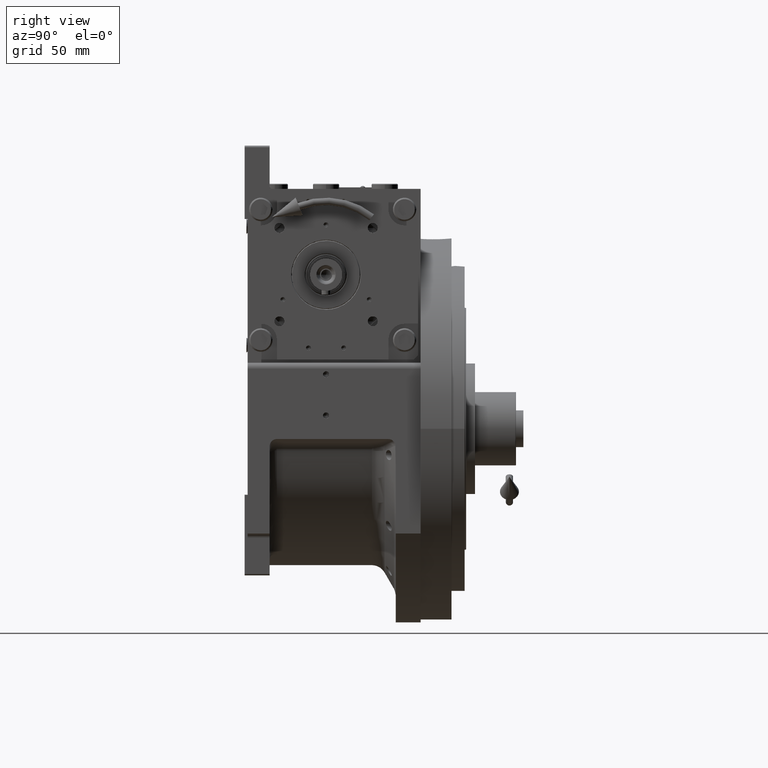
[diagram: clean part render]
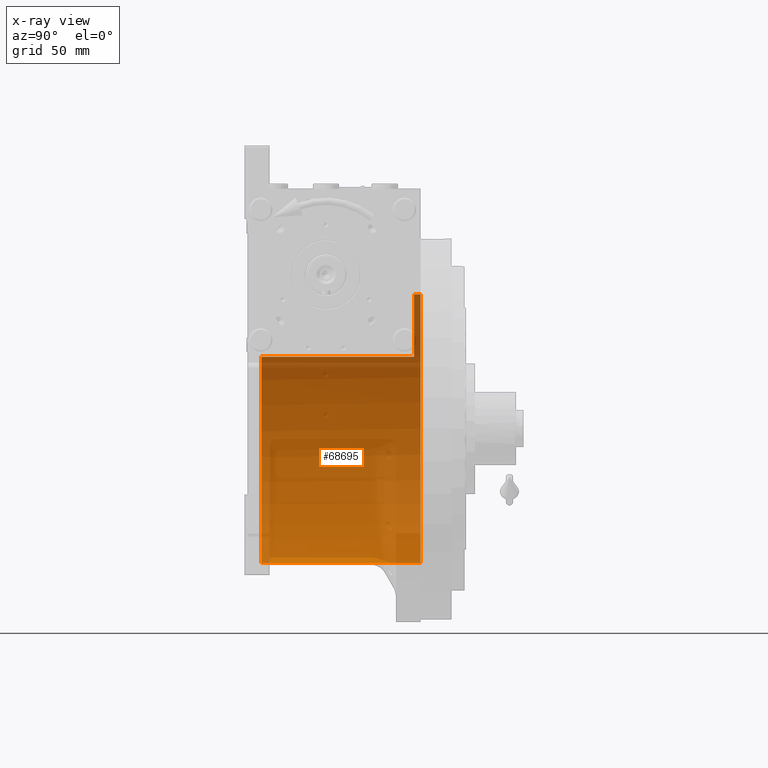
[diagram: x-ray — body ghosted, one internal face saturated and labeled with its STEP entity id]
A machine part, right view, then the same camera in x-ray: the body is ghosted and one INTERNAL B-rep face — a face not visible from any outside direction — is saturated and labeled: STEP entity #68695.
In plain terms, the highlighted cylindrical surface (partial cylindrical patch) has radius 91.5 mm, axis along (0, -1, 0).
Its self-contained STEP definition (entity closure, byte-faithful):
#1393 = CARTESIAN_POINT ( 'NONE',  ( 1.120551821219827868E-14, 64.50000000000000000, 91.50000000000000000 ) ) ;
#1943 = FACE_OUTER_BOUND ( 'NONE', #27475, .T. ) ;
#2018 = DIRECTION ( 'NONE',  ( -0.000000000000000000, -1.000000000000000000, -0.000000000000000000 ) ) ;
#2460 = ORIENTED_EDGE ( 'NONE', *, *, #40705, .F. ) ;
#3438 = CARTESIAN_POINT ( 'NONE',  ( -77.27386362800814368, 60.00000000000000000, 48.99999999999998579 ) ) ;
#8082 = CARTESIAN_POINT ( 'NONE',  ( 0.000000000000000000, 64.50000000000000000, 0.000000000000000000 ) ) ;
#8113 = ORIENTED_EDGE ( 'NONE', *, *, #29522, .T. ) ;
#8654 = LINE ( 'NONE', #48045, #65755 ) ;
#9245 = CARTESIAN_POINT ( 'NONE',  ( 0.000000000000000000, -44.00000000000000000, -91.50000000000000000 ) ) ;
#11851 = CIRCLE ( 'NONE', #38123, 91.50000000000000000 ) ;
#16686 = CARTESIAN_POINT ( 'NONE',  ( -77.27386362800812947, 69.00000000000004263, 48.99999999999998579 ) ) ;
#17375 = EDGE_CURVE ( 'NONE', #19365, #20944, #11851, .T. ) ;
#18139 = DIRECTION ( 'NONE',  ( 0.000000000000000000, 0.000000000000000000, 1.000000000000000000 ) ) ;
#19003 = VECTOR ( 'NONE', #47250, 1000.000000000000000 ) ;
#19365 = VERTEX_POINT ( 'NONE', #3438 ) ;
#19737 = VERTEX_POINT ( 'NONE', #34165 ) ;
#20672 = CIRCLE ( 'NONE', #38923, 91.50000000000000000 ) ;
#20944 = VERTEX_POINT ( 'NONE', #58338 ) ;
#21155 = DIRECTION ( 'NONE',  ( 0.000000000000000000, 1.000000000000000000, 0.000000000000000000 ) ) ;
#27302 = VERTEX_POINT ( 'NONE', #9245 ) ;
#27475 = EDGE_LOOP ( 'NONE', ( #41549, #8113, #68584, #33253, #2460, #36226 ) ) ;
#28654 = VERTEX_POINT ( 'NONE', #51128 ) ;
#29183 = VECTOR ( 'NONE', #65767, 1000.000000000000000 ) ;
#29522 = EDGE_CURVE ( 'NONE', #45417, #20944, #8654, .T. ) ;
#30220 = DIRECTION ( 'NONE',  ( 0.000000000000000000, -1.000000000000000000, 0.000000000000000000 ) ) ;
#30260 = EDGE_CURVE ( 'NONE', #19737, #19365, #61078, .T. ) ;
#31272 = EDGE_CURVE ( 'NONE', #28654, #27302, #41497, .T. ) ;
#31577 = DIRECTION ( 'NONE',  ( 0.000000000000000000, -1.000000000000000000, 0.000000000000000000 ) ) ;
#33253 = ORIENTED_EDGE ( 'NONE', *, *, #30260, .F. ) ;
#34165 = CARTESIAN_POINT ( 'NONE',  ( -77.27386362800814368, -44.00000000000000000, 49.00000000000000000 ) ) ;
#34865 = CARTESIAN_POINT ( 'NONE',  ( 0.000000000000000000, 69.00000000000004263, 0.000000000000000000 ) ) ;
#35531 = AXIS2_PLACEMENT_3D ( 'NONE', #60269, #60946, #55567 ) ;
#36136 = CARTESIAN_POINT ( 'NONE',  ( 0.000000000000000000, 69.00000000000004263, -91.50000000000000000 ) ) ;
#36226 = ORIENTED_EDGE ( 'NONE', *, *, #31272, .F. ) ;
#38123 = AXIS2_PLACEMENT_3D ( 'NONE', #59108, #21155, #42971 ) ;
#38923 = AXIS2_PLACEMENT_3D ( 'NONE', #8082, #2018, #18139 ) ;
#40705 = EDGE_CURVE ( 'NONE', #27302, #19737, #66441, .T. ) ;
#41497 = LINE ( 'NONE', #36136, #19003 ) ;
#41549 = ORIENTED_EDGE ( 'NONE', *, *, #67355, .F. ) ;
#42971 = DIRECTION ( 'NONE',  ( 1.776356839400250465E-15, 0.000000000000000000, -1.000000000000000000 ) ) ;
#45417 = VERTEX_POINT ( 'NONE', #1393 ) ;
#47250 = DIRECTION ( 'NONE',  ( 0.000000000000000000, -1.000000000000000000, 0.000000000000000000 ) ) ;
#48045 = CARTESIAN_POINT ( 'NONE',  ( 1.120551821219827868E-14, 69.00000000000004263, 91.50000000000000000 ) ) ;
#51128 = CARTESIAN_POINT ( 'NONE',  ( 0.000000000000000000, 64.50000000000000000, -91.50000000000000000 ) ) ;
#52070 = CYLINDRICAL_SURFACE ( 'NONE', #70003, 91.50000000000000000 ) ;
#55567 = DIRECTION ( 'NONE',  ( 0.000000000000000000, 0.000000000000000000, 1.000000000000000000 ) ) ;
#56359 = DIRECTION ( 'NONE',  ( 0.000000000000000000, 0.000000000000000000, -1.000000000000000000 ) ) ;
#58338 = CARTESIAN_POINT ( 'NONE',  ( 1.120551821219827868E-14, 60.00000000000000000, 91.50000000000000000 ) ) ;
#59108 = CARTESIAN_POINT ( 'NONE',  ( 0.000000000000000000, 60.00000000000000000, 0.000000000000000000 ) ) ;
#60269 = CARTESIAN_POINT ( 'NONE',  ( 0.000000000000000000, -44.00000000000000000, 0.000000000000000000 ) ) ;
#60946 = DIRECTION ( 'NONE',  ( 0.000000000000000000, 1.000000000000000000, 0.000000000000000000 ) ) ;
#61078 = LINE ( 'NONE', #16686, #29183 ) ;
#65755 = VECTOR ( 'NONE', #31577, 1000.000000000000000 ) ;
#65767 = DIRECTION ( 'NONE',  ( -0.000000000000000000, 1.000000000000000000, -0.000000000000000000 ) ) ;
#66441 = CIRCLE ( 'NONE', #35531, 91.50000000000000000 ) ;
#67355 = EDGE_CURVE ( 'NONE', #45417, #28654, #20672, .T. ) ;
#68584 = ORIENTED_EDGE ( 'NONE', *, *, #17375, .F. ) ;
#68695 = ADVANCED_FACE ( 'NONE', ( #1943 ), #52070, .F. ) ;
#70003 = AXIS2_PLACEMENT_3D ( 'NONE', #34865, #30220, #56359 ) ;